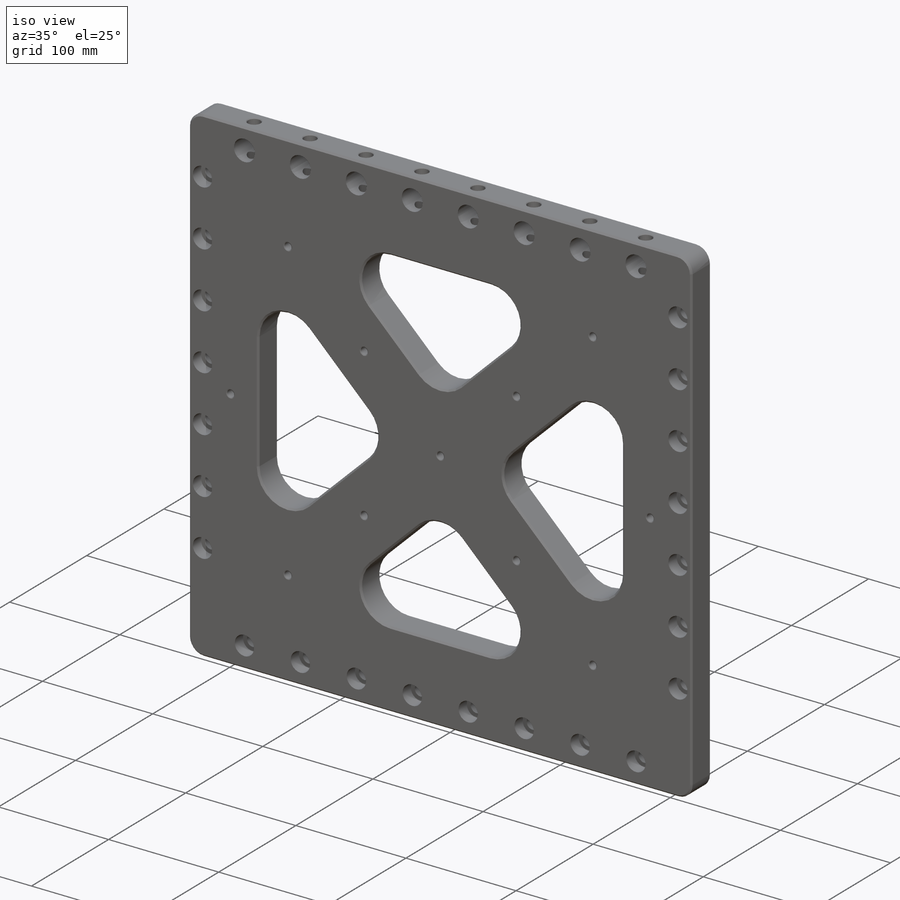
[diagram: iso view]
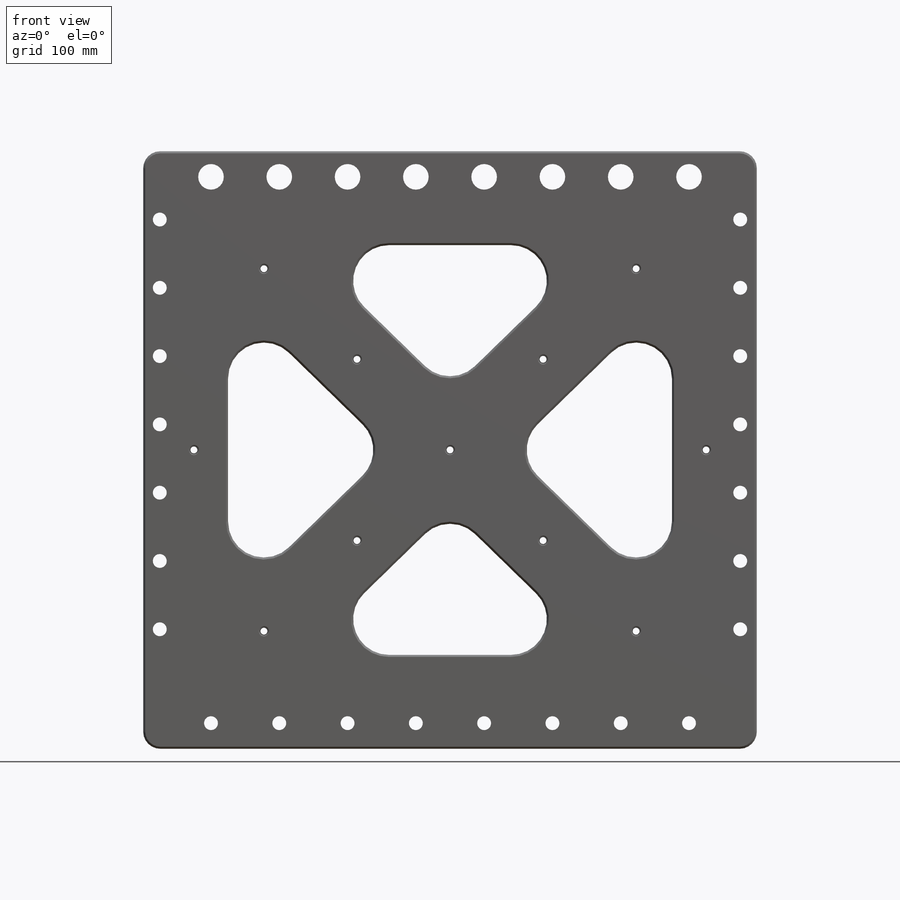
[diagram: front view]
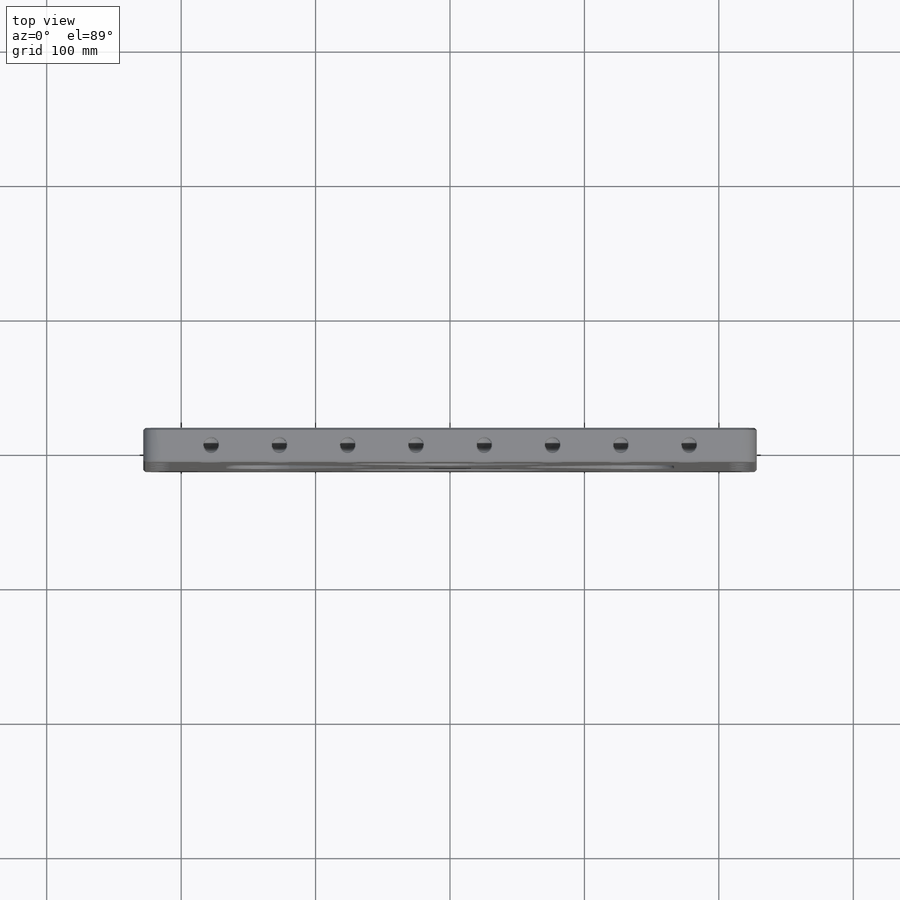
[diagram: top view]
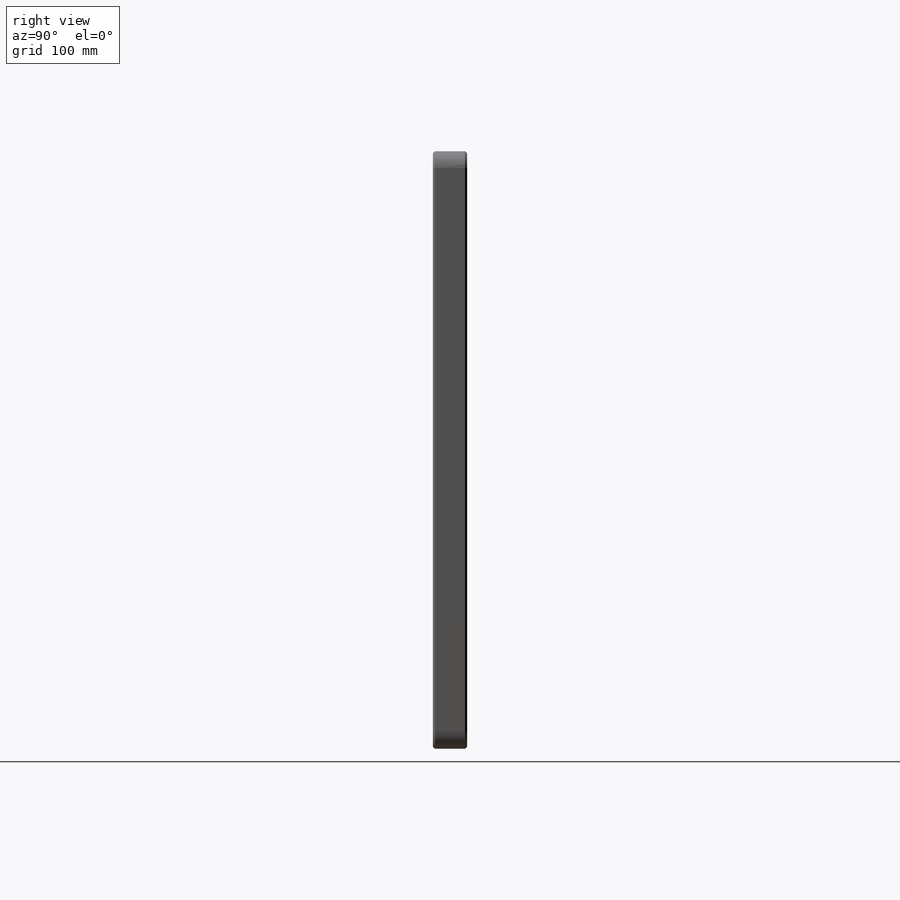
[diagram: right view]
SOLIDWORKS PART (.sldprt)
format: sldprt  version: not decoded by parser v0  size: 751,104 bytes
history: native  units: mm
features: sketch x12, hole x5, pattern_linear x2, fillet x2, material x1, extrude x1, cut_extrude x1, chamfer x1 (+14 scaffold rows collapsed)
feature tree (39):
  scaffold x14  (default folders/planes/origin — collapsed)
  material  "6061-T6 Al"
  sketch  "Sketch1"  dims[D1=456.438mm D2=444.5mm]
  extrude  "Extrude1"  Depth=25.4mm
  hole  "CBORE for 3/8 Socket Head Cap Screw1"  Diameter=10.31748mm Depth=25.4mm
  sketch  "Sketch3"  dims[c1.D1=~17.96255mm c1.D2=19.05mm c2.D1=431.8mm c2.D2=406.4mm]
  sketch  "Sketch2"  dims[hole-wizard template sketch: 43 standard entries collapsed; hole parameters kept: c12.C'Bore Dia.=17.4752mm c12.C'Bore Depth=10.668mm c12.Far C'Sink Dia.=11.684mm c12.D6=~2.963249mm c12.Far C'Sink Angle=82.0deg]
  pattern_linear  "LPattern1"  Count1=4 Count2=4 Spacing1=50.8mm Spacing2=50.8mm
  sketch  "Sketch10"  dims[D1=69.85mm D2=330.2mm D3=63.5mm]
  cut_extrude  "Triangles -- Cut-Extrude1"  [1 undecoded]
  fillet  "Fillet1"  Radius=26.67mm
  hole  "CBORE for 3/8 Socket Head Cap Screw3"  Diameter=10.31748mm Depth=25.4mm
  sketch  "Sketch9"  dims[c1.D1=450.85mm c1.D2=63.5mm c2.D1=425.45mm c2.D2=25.4mm]
  sketch  "Sketch8"  dims[hole-wizard template sketch: 43 standard entries collapsed; hole parameters kept: c12.C'Bore Dia.=17.4752mm c12.C'Bore Depth=10.668mm c12.Far C'Sink Dia.=11.684mm c12.D6=~2.963249mm c12.Far C'Sink Angle=82.0deg]
  hole  "3/4 (0.75) Diameter Hole1"  Diameter=19.05mm Depth=25.4mm
  sketch  "Sketch13"  dims[D1=19.05mm]
  sketch  "Sketch12"  dims[hole-wizard template sketch: 61 standard entries collapsed; hole parameters above]
  hole  "7/16 (0.4375) Diameter Hole1"  Diameter=11.1125mm Depth=34.925mm
  sketch  "Sketch15"
  sketch  "Sketch14"  dims[hole-wizard template sketch: 46 standard entries collapsed; hole parameters above]
  pattern_linear  "LPattern3"  Count1=5 Count2=4 Spacing1=50.8mm Spacing2=50.8mm
  hole  "1/4-20 Tapped Hole1"  Diameter=5.1054mm Depth=25.4mm
  sketch  "Sketch17"  dims[D1=381.0mm]
  sketch  "Sketch16"  dims[hole-wizard template sketch: 41 standard entries collapsed; hole parameters kept: c12.Thru Tap Drill Dia.=5.1054mm c12.Thru Tap Drill Depth=25.4mm c12.Thread Major Dia.=6.35mm c12.Thread Depth=12.7mm c12.Near C'Sink Dia.=7.62mm c12.D6=~4.399409mm c12.Near C'Sink Angle=120.0deg]
  fillet  "Fillet2"  Radius=12.7mm
  chamfer  "Chamfer1"  Distance=1.524mm Angle=45deg
decode coverage: 22 of 24 modeling features carry decoded parameters
note: ~ marks probable driven/reference dimensions
note: 1 parameter value undecoded
summary: Diameter pulled from absorbed wizard sketch
note: suppression state not decoded; provenance and decode notes live in map.json
